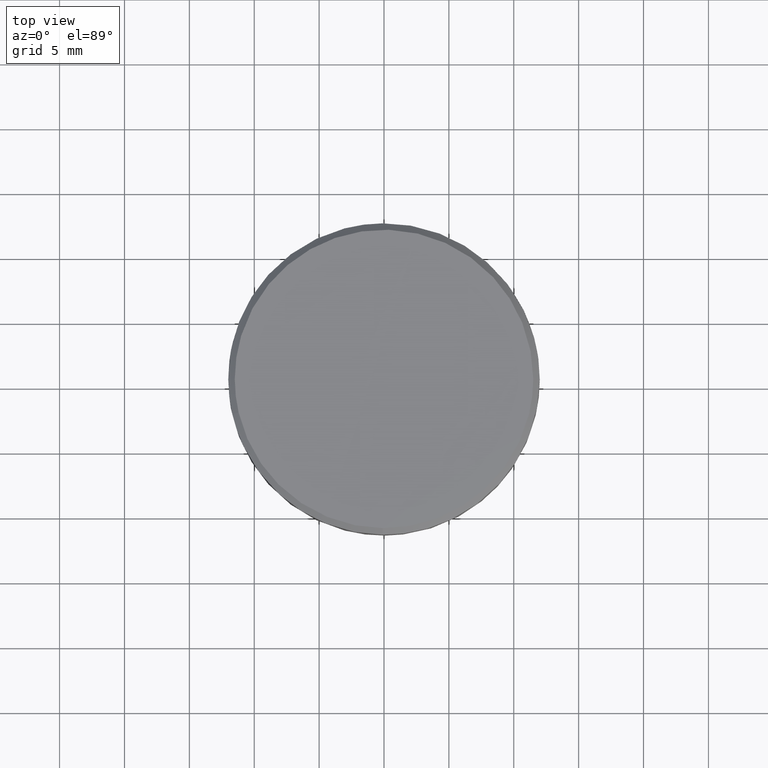
[diagram: clean part render]
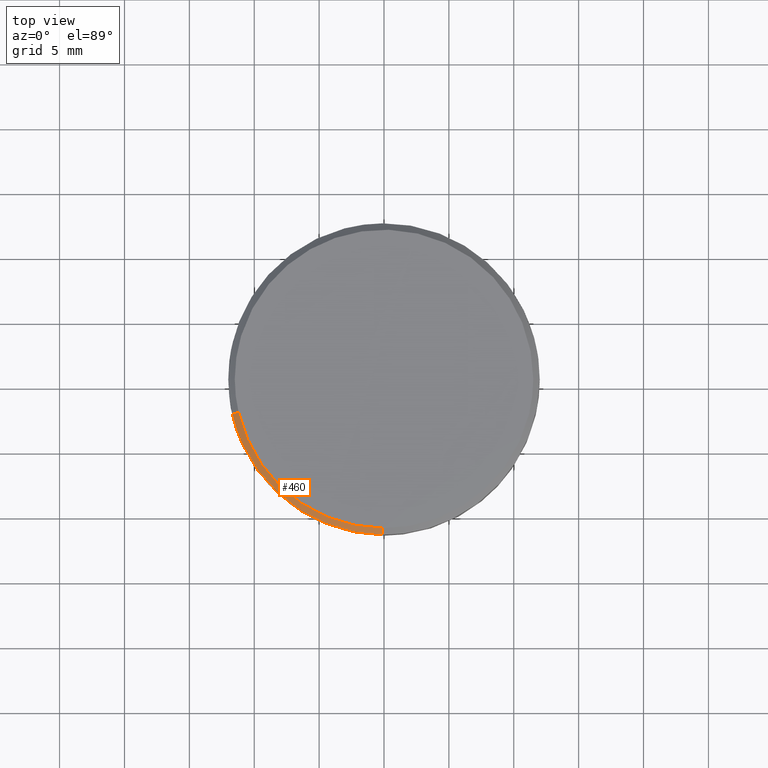
[diagram: same view with one face highlighted and labeled with its STEP entity id]
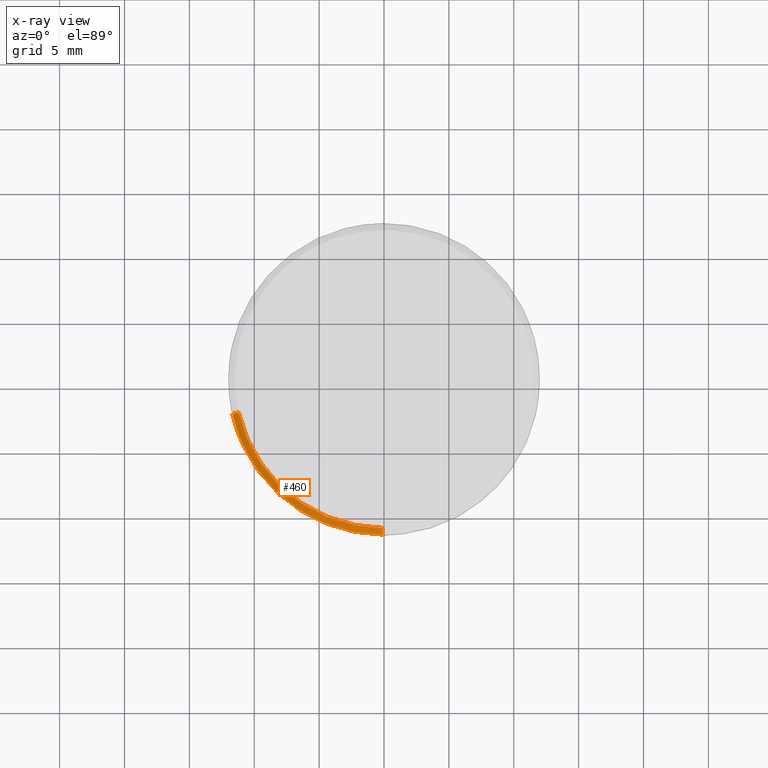
[diagram: x-ray of the same camera — body ghosted, the highlighted face saturated]
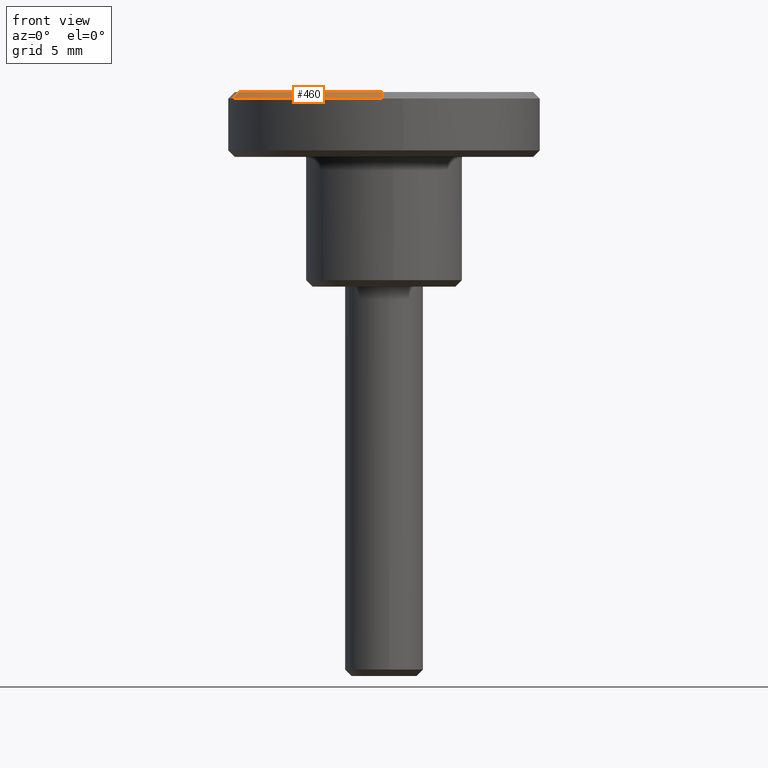
[diagram: same view with one face highlighted and labeled with its STEP entity id]
A machine part, top view. The second image highlights one B-rep face of the part: STEP entity #460.
The next image is the same camera in x-ray: the body ghosted, the highlighted face saturated — about 0% of this face is hidden behind the body in this view.
A second angle (front view) of the same face is appended — the face is thin or edge-on in the first view.
In plain terms, the highlighted face is a freeform B-spline surface patch.
Its self-contained STEP definition (entity closure, byte-faithful):
#271=CARTESIAN_POINT('',(-11.690617838142330,-2.707296541298529,14.499999999999231));
#272=VERTEX_POINT('',#271);
#288=CARTESIAN_POINT('',(-11.203508761551699,-2.594492518756421,14.999999999997851));
#289=VERTEX_POINT('',#288);
#290=CARTESIAN_POINT('',(-11.203508761551699,-2.594492518756421,14.999999999997851));
#291=CARTESIAN_POINT('',(-11.690617838142330,-2.707296541298529,14.499999999999231));
#292=QUASI_UNIFORM_CURVE('',1,(#290,#291),.UNSPECIFIED.,.F.,.U.);
#293=EDGE_CURVE('',#289,#272,#292,.T.);
#327=CARTESIAN_POINT('',(-0.100355158268865,-11.499562115242730,14.999999999994881));
#328=VERTEX_POINT('',#327);
#344=CARTESIAN_POINT('',(-0.104718426003151,-11.999543076772930,14.499999999996930));
#345=VERTEX_POINT('',#344);
#346=CARTESIAN_POINT('',(-0.100355158268865,-11.499562115242730,14.999999999994881));
#347=CARTESIAN_POINT('',(-0.104718426003151,-11.999543076772930,14.499999999996930));
#348=QUASI_UNIFORM_CURVE('',1,(#346,#347),.UNSPECIFIED.,.F.,.U.);
#349=EDGE_CURVE('',#328,#345,#348,.T.);
#416=CARTESIAN_POINT('',(-0.100246076537570,-11.487062591199610,15.012499999999999));
#417=CARTESIAN_POINT('',(-9.149637732336018,-11.408089746632660,15.012500000000003));
#418=CARTESIAN_POINT('',(-11.191331034639012,-2.591672418174083,15.012500000000003));
#419=CARTESIAN_POINT('',(-0.104830234716560,-12.012355088909320,14.487187499999999));
#420=CARTESIAN_POINT('',(-9.568042004045996,-11.929770890922430,14.487187500000001));
#421=CARTESIAN_POINT('',(-11.703100008230697,-2.710187144369708,14.487187499999997));
#429=(BOUNDED_SURFACE()B_SPLINE_SURFACE(2,1,((#416,#419),(#417,#420),(#418,#421)),.UNSPECIFIED.,.F.,.F.,.U.)B_SPLINE_SURFACE_WITH_KNOTS((3,3),(2,2),(0.0,16.645809910381690),(0.0,1.0),.UNSPECIFIED.)GEOMETRIC_REPRESENTATION_ITEM()RATIONAL_B_SPLINE_SURFACE(((1.0,1.0),(0.753969696196700,0.753969696196700),(0.921270302782944,0.921270302782944)))REPRESENTATION_ITEM('')SURFACE());
#430=CARTESIAN_POINT('',(-0.104718426003151,-11.999543076772934,14.499999999996927));
#431=CARTESIAN_POINT('',(-9.557837021806503,-11.917046960538249,14.499999999999998));
#432=CARTESIAN_POINT('',(-11.690617838142328,-2.707296541298530,14.499999999999229));
#440=(BOUNDED_CURVE()B_SPLINE_CURVE(2,(#430,#431,#432),.UNSPECIFIED.,.F.,.U.)B_SPLINE_CURVE_WITH_KNOTS((3,3),(0.751539894335652,0.961422971784425),.UNSPECIFIED.)CURVE()GEOMETRIC_REPRESENTATION_ITEM()RATIONAL_B_SPLINE_CURVE((0.996414028098868,0.753549905436560,0.923556557442487))REPRESENTATION_ITEM(''));
#441=EDGE_CURVE('',#345,#272,#440,.T.);
#442=ORIENTED_EDGE('',*,*,#441,.F.);
#443=ORIENTED_EDGE('',*,*,#349,.F.);
#444=CARTESIAN_POINT('',(-11.203508761551698,-2.594492518756420,14.999999999997854));
#445=CARTESIAN_POINT('',(-9.159593812550893,-11.420503337157657,14.999999999999995));
#446=CARTESIAN_POINT('',(-0.100355158268865,-11.499562115242725,14.999999999994884));
#454=(BOUNDED_CURVE()B_SPLINE_CURVE(2,(#444,#445,#446),.UNSPECIFIED.,.F.,.U.)B_SPLINE_CURVE_WITH_KNOTS((3,3),(0.538577028215916,0.748460105663863),.UNSPECIFIED.)CURVE()GEOMETRIC_REPRESENTATION_ITEM()RATIONAL_B_SPLINE_CURVE((0.923556557441935,0.753549905437348,0.996414028097745))REPRESENTATION_ITEM(''));
#455=EDGE_CURVE('',#289,#328,#454,.T.);
#456=ORIENTED_EDGE('',*,*,#455,.F.);
#457=ORIENTED_EDGE('',*,*,#293,.T.);
#458=EDGE_LOOP('',(#442,#443,#456,#457));
#459=FACE_OUTER_BOUND('',#458,.T.);
#460=ADVANCED_FACE('',(#459),#429,.T.);